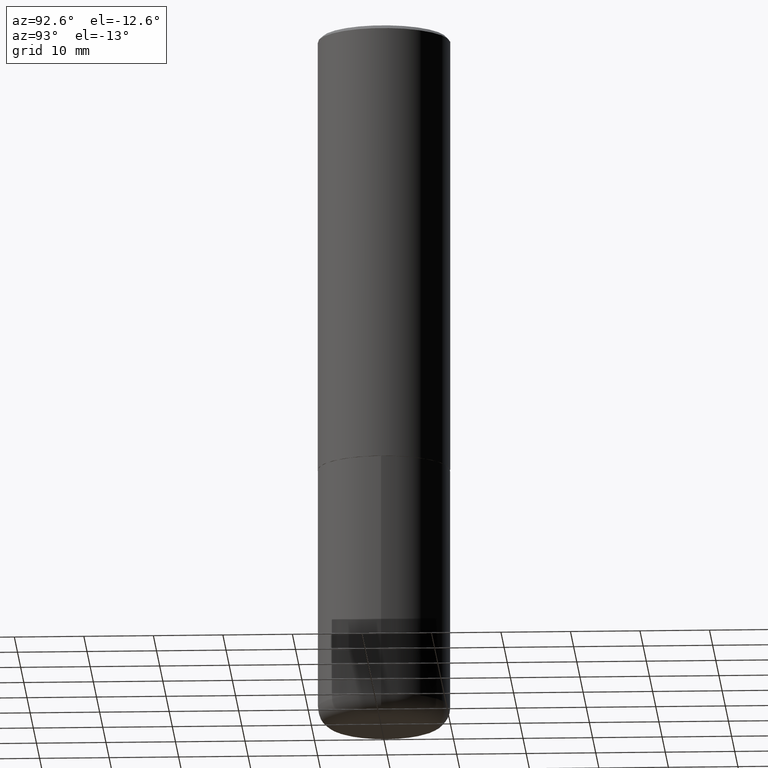
[diagram: clean part render]
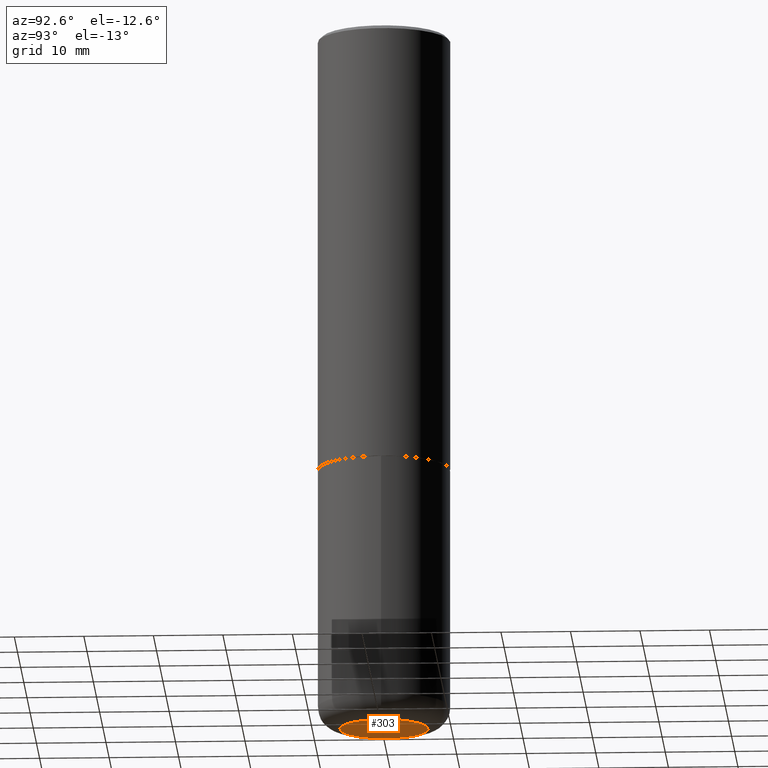
[diagram: same view with one face highlighted and labeled with its STEP entity id]
A machine part, auxiliary view. The second image highlights one B-rep face of the part: STEP entity #303.
In plain terms, the highlighted planar face has unit normal (0, -0, -1).
Its self-contained STEP definition (entity closure, byte-faithful):
#11 = DIRECTION ( 'NONE',  ( 1.000000000000000000, -6.982962677686269077E-15, 0.000000000000000000 ) ) ;
#18 = EDGE_CURVE ( 'NONE', #86, #278, #70, .T. ) ;
#24 = DIRECTION ( 'NONE',  ( -1.000000000000000000, 6.982962677686265922E-15, -4.876176775795935793E-29 ) ) ;
#52 = DIRECTION ( 'NONE',  ( -2.445468806185136597E-29, 3.491481338843145583E-15, 1.000000000000000000 ) ) ;
#63 = ORIENTED_EDGE ( 'NONE', *, *, #306, .F. ) ;
#70 = CIRCLE ( 'NONE', #232, 0.2500000000000000555 ) ;
#75 = AXIS2_PLACEMENT_3D ( 'NONE', #119, #52, #220 ) ;
#86 = VERTEX_POINT ( 'NONE', #101 ) ;
#92 = CARTESIAN_POINT ( 'NONE',  ( 9.781875224740546387E-29, -1.396592535537258233E-14, -4.000000000000000000 ) ) ;
#101 = CARTESIAN_POINT ( 'NONE',  ( -0.2500000000000000555, -1.152726172244457105E-14, -4.000000000000000000 ) ) ;
#119 = CARTESIAN_POINT ( 'NONE',  ( 9.781875224740546387E-29, -1.396592535537258233E-14, -4.000000000000000000 ) ) ;
#129 = CIRCLE ( 'NONE', #75, 0.2500000000000000555 ) ;
#183 = EDGE_LOOP ( 'NONE', ( #63, #215 ) ) ;
#207 = CARTESIAN_POINT ( 'NONE',  ( 0.2500000000000000555, -1.571166602479415059E-14, -4.000000000000000000 ) ) ;
#215 = ORIENTED_EDGE ( 'NONE', *, *, #18, .F. ) ;
#218 = PLANE ( 'NONE',  #260 ) ;
#220 = DIRECTION ( 'NONE',  ( 1.000000000000000000, -6.982962677686269077E-15, 0.000000000000000000 ) ) ;
#232 = AXIS2_PLACEMENT_3D ( 'NONE', #390, #330, #11 ) ;
#240 = DIRECTION ( 'NONE',  ( 2.438088387897960049E-29, -3.491481338843145188E-15, -1.000000000000000000 ) ) ;
#260 = AXIS2_PLACEMENT_3D ( 'NONE', #92, #240, #24 ) ;
#278 = VERTEX_POINT ( 'NONE', #207 ) ;
#303 = ADVANCED_FACE ( 'NONE', ( #343 ), #218, .T. ) ;
#306 = EDGE_CURVE ( 'NONE', #278, #86, #129, .T. ) ;
#330 = DIRECTION ( 'NONE',  ( -2.445468806185136597E-29, 3.491481338843145583E-15, 1.000000000000000000 ) ) ;
#343 = FACE_OUTER_BOUND ( 'NONE', #183, .T. ) ;
#390 = CARTESIAN_POINT ( 'NONE',  ( 9.781875224740546387E-29, -1.396592535537258233E-14, -4.000000000000000000 ) ) ;